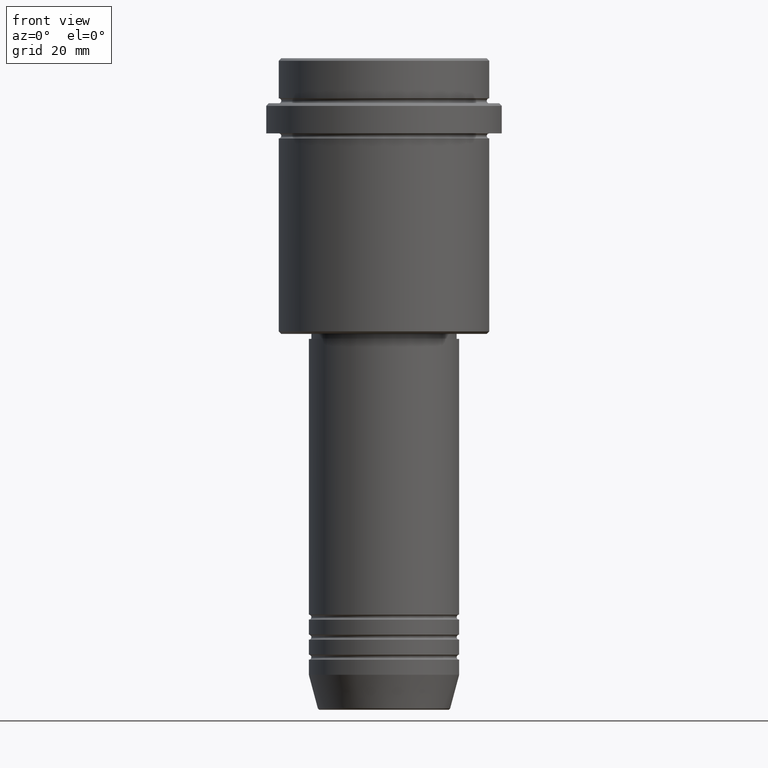
[diagram: clean part render]
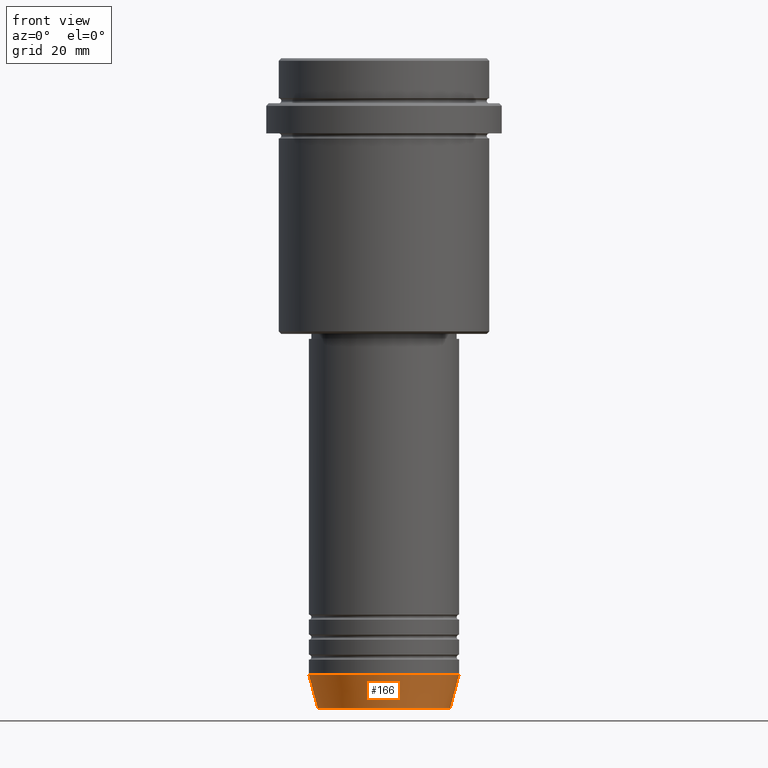
[diagram: same view with one face highlighted and labeled with its STEP entity id]
A machine part, front view. The second image highlights one B-rep face of the part: STEP entity #166.
In plain terms, the highlighted conical surface has half-angle 15 deg.
Its self-contained STEP definition (entity closure, byte-faithful):
#41 = DIRECTION ( 'NONE',  ( 1.000000000000000000, 0.000000000000000000, 0.000000000000000000 ) ) ;
#55 = VECTOR ( 'NONE', #167, 1000.000000000000000 ) ;
#56 = CONICAL_SURFACE ( 'NONE', #781, 15.00000000000000000, 0.2617993877991500740 ) ;
#65 = VERTEX_POINT ( 'NONE', #1199 ) ;
#131 = CARTESIAN_POINT ( 'NONE',  ( 0.000000000000000000, 0.000000000000000000, -129.6294095225512422 ) ) ;
#166 = ADVANCED_FACE ( 'NONE', ( #1122 ), #56, .T. ) ;
#167 = DIRECTION ( 'NONE',  ( -0.2588190451025213501, 3.169619151431772337E-17, 0.9659258262890680902 ) ) ;
#217 = AXIS2_PLACEMENT_3D ( 'NONE', #505, #1379, #1148 ) ;
#285 = CIRCLE ( 'NONE', #1085, 13.22365507213719305 ) ;
#348 = EDGE_CURVE ( 'NONE', #837, #523, #1222, .T. ) ;
#419 = EDGE_LOOP ( 'NONE', ( #741, #532, #984, #726 ) ) ;
#449 = DIRECTION ( 'NONE',  ( -0.000000000000000000, -0.000000000000000000, 1.000000000000000000 ) ) ;
#457 = CARTESIAN_POINT ( 'NONE',  ( 15.00000000000000000, 0.000000000000000000, -123.0000000000000000 ) ) ;
#505 = CARTESIAN_POINT ( 'NONE',  ( 0.000000000000000000, 0.000000000000000000, -123.0000000000000000 ) ) ;
#523 = VERTEX_POINT ( 'NONE', #1328 ) ;
#531 = EDGE_CURVE ( 'NONE', #554, #65, #285, .T. ) ;
#532 = ORIENTED_EDGE ( 'NONE', *, *, #531, .T. ) ;
#554 = VERTEX_POINT ( 'NONE', #814 ) ;
#577 = LINE ( 'NONE', #457, #690 ) ;
#676 = DIRECTION ( 'NONE',  ( 0.2588190451025213501, 0.000000000000000000, 0.9659258262890680902 ) ) ;
#690 = VECTOR ( 'NONE', #676, 1000.000000000000000 ) ;
#726 = ORIENTED_EDGE ( 'NONE', *, *, #348, .F. ) ;
#741 = ORIENTED_EDGE ( 'NONE', *, *, #1276, .F. ) ;
#781 = AXIS2_PLACEMENT_3D ( 'NONE', #905, #449, #41 ) ;
#792 = DIRECTION ( 'NONE',  ( -0.000000000000000000, -0.000000000000000000, 1.000000000000000000 ) ) ;
#814 = CARTESIAN_POINT ( 'NONE',  ( -13.22365507213719305, 1.728200442216588386E-15, -129.6294095225512422 ) ) ;
#837 = VERTEX_POINT ( 'NONE', #1145 ) ;
#841 = EDGE_CURVE ( 'NONE', #65, #523, #577, .T. ) ;
#905 = CARTESIAN_POINT ( 'NONE',  ( 0.000000000000000000, 0.000000000000000000, -123.0000000000000000 ) ) ;
#940 = LINE ( 'NONE', #1282, #55 ) ;
#984 = ORIENTED_EDGE ( 'NONE', *, *, #841, .T. ) ;
#1085 = AXIS2_PLACEMENT_3D ( 'NONE', #131, #792, #1167 ) ;
#1122 = FACE_OUTER_BOUND ( 'NONE', #419, .T. ) ;
#1145 = CARTESIAN_POINT ( 'NONE',  ( -15.00000000000000000, 1.836970198721029589E-15, -123.0000000000000000 ) ) ;
#1148 = DIRECTION ( 'NONE',  ( 1.000000000000000000, 0.000000000000000000, 0.000000000000000000 ) ) ;
#1167 = DIRECTION ( 'NONE',  ( 1.000000000000000000, 0.000000000000000000, 0.000000000000000000 ) ) ;
#1199 = CARTESIAN_POINT ( 'NONE',  ( 13.22365507213719305, 0.000000000000000000, -129.6294095225512422 ) ) ;
#1222 = CIRCLE ( 'NONE', #217, 15.00000000000000000 ) ;
#1276 = EDGE_CURVE ( 'NONE', #554, #837, #940, .T. ) ;
#1282 = CARTESIAN_POINT ( 'NONE',  ( -15.00000000000000000, 1.836970198721029589E-15, -123.0000000000000000 ) ) ;
#1328 = CARTESIAN_POINT ( 'NONE',  ( 15.00000000000000000, 0.000000000000000000, -123.0000000000000000 ) ) ;
#1379 = DIRECTION ( 'NONE',  ( -0.000000000000000000, -0.000000000000000000, 1.000000000000000000 ) ) ;